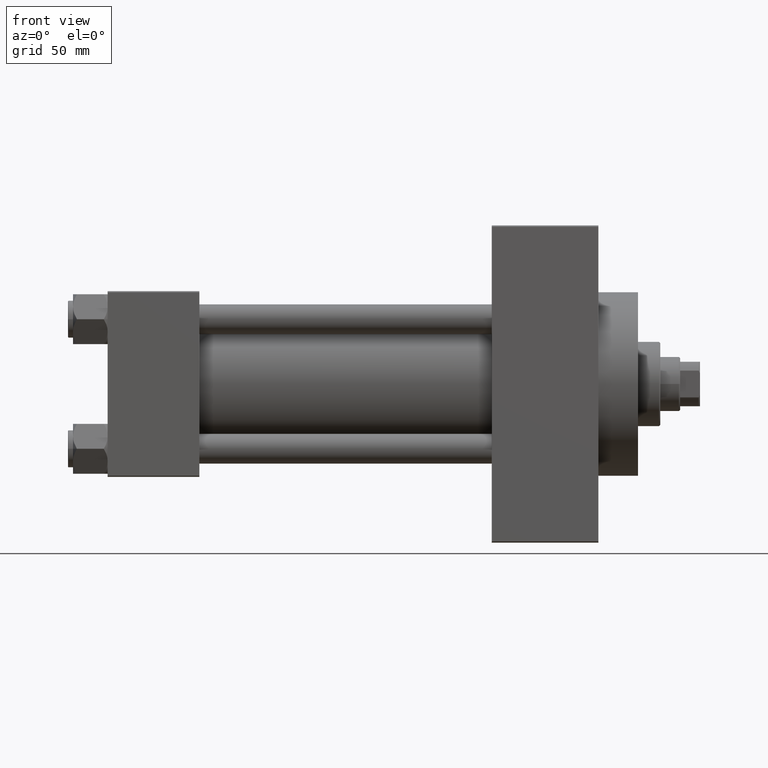
[diagram: clean part render]
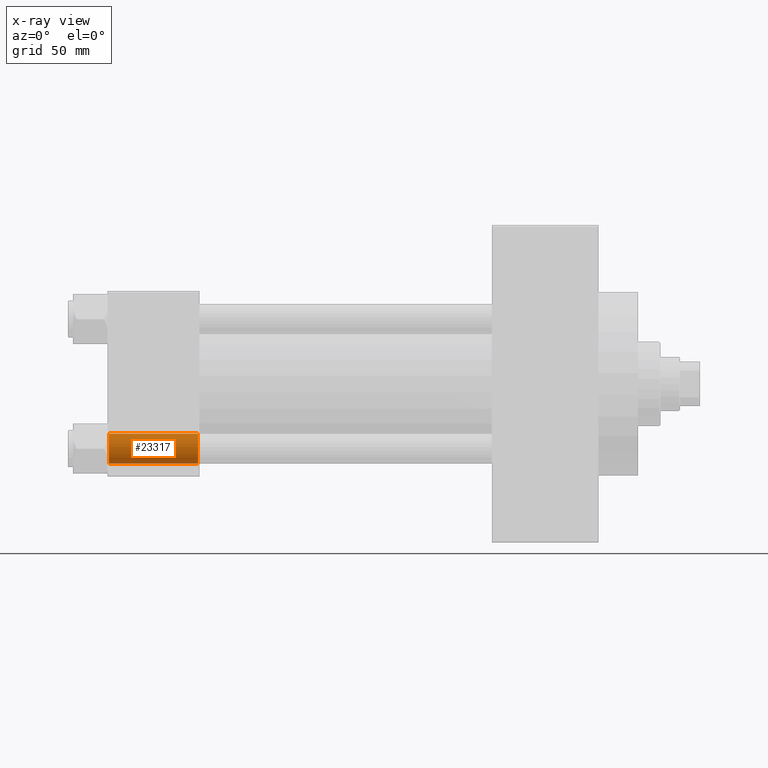
[diagram: x-ray — body ghosted, one internal face saturated and labeled with its STEP entity id]
A machine part, front view, then the same camera in x-ray: the body is ghosted and one INTERNAL B-rep face — a face not visible from any outside direction — is saturated and labeled: STEP entity #23317.
In plain terms, the highlighted cylindrical surface (edge-blend (fillet) strip) has radius 6 mm, axis along (-1, -0, -0).
Its self-contained STEP definition (entity closure, byte-faithful):
#749 = CARTESIAN_POINT ( 'NONE',  ( 0.5000000000000213163, 26.14999999999999858, -26.15000000000000213 ) ) ;
#1168 = AXIS2_PLACEMENT_3D ( 'NONE', #24256, #17051, #45586 ) ;
#4095 = DIRECTION ( 'NONE',  ( -1.000000000000000000, 0.000000000000000000, 0.000000000000000000 ) ) ;
#5039 = CYLINDRICAL_SURFACE ( 'NONE', #44826, 6.000000000000001776 ) ;
#5116 = ORIENTED_EDGE ( 'NONE', *, *, #30290, .F. ) ;
#5763 = LINE ( 'NONE', #42456, #37264 ) ;
#8909 = DIRECTION ( 'NONE',  ( -1.000000000000000000, -0.000000000000000000, -0.000000000000000000 ) ) ;
#9124 = LINE ( 'NONE', #23763, #42756 ) ;
#10528 = CARTESIAN_POINT ( 'NONE',  ( 0.5000000000000213163, 26.14999999999999858, -20.15000000000000213 ) ) ;
#11860 = CARTESIAN_POINT ( 'NONE',  ( 36.50000000000000711, 26.14999999999999858, -20.15000000000000213 ) ) ;
#15611 = DIRECTION ( 'NONE',  ( 0.000000000000000000, 0.000000000000000000, 1.000000000000000000 ) ) ;
#16171 = VERTEX_POINT ( 'NONE', #10528 ) ;
#17051 = DIRECTION ( 'NONE',  ( 1.000000000000000000, -0.000000000000000000, -0.000000000000000000 ) ) ;
#19687 = DIRECTION ( 'NONE',  ( -1.000000000000000000, -0.000000000000000000, -0.000000000000000000 ) ) ;
#20805 = EDGE_CURVE ( 'NONE', #46587, #42834, #5763, .T. ) ;
#23052 = DIRECTION ( 'NONE',  ( 0.000000000000000000, 0.000000000000000000, 1.000000000000000000 ) ) ;
#23317 = ADVANCED_FACE ( 'NONE', ( #34764 ), #5039, .F. ) ;
#23763 = CARTESIAN_POINT ( 'NONE',  ( 37.00000000000000711, 26.14999999999999858, -20.15000000000000213 ) ) ;
#24256 = CARTESIAN_POINT ( 'NONE',  ( 36.50000000000000711, 26.14999999999999858, -26.15000000000000213 ) ) ;
#30290 = EDGE_CURVE ( 'NONE', #46294, #16171, #9124, .T. ) ;
#32682 = EDGE_LOOP ( 'NONE', ( #36906, #44533, #36715, #5116 ) ) ;
#32947 = CARTESIAN_POINT ( 'NONE',  ( 36.50000000000000711, 26.14999999999999858, -32.15000000000000568 ) ) ;
#34764 = FACE_OUTER_BOUND ( 'NONE', #32682, .T. ) ;
#34770 = CARTESIAN_POINT ( 'NONE',  ( 0.5000000000000213163, 26.14999999999999858, -32.15000000000000568 ) ) ;
#36715 = ORIENTED_EDGE ( 'NONE', *, *, #46239, .T. ) ;
#36906 = ORIENTED_EDGE ( 'NONE', *, *, #40479, .T. ) ;
#37264 = VECTOR ( 'NONE', #8909, 1000.000000000000000 ) ;
#38011 = AXIS2_PLACEMENT_3D ( 'NONE', #749, #4095, #15611 ) ;
#38381 = DIRECTION ( 'NONE',  ( -1.000000000000000000, -0.000000000000000000, -0.000000000000000000 ) ) ;
#39458 = CIRCLE ( 'NONE', #1168, 6.000000000000001776 ) ;
#40479 = EDGE_CURVE ( 'NONE', #46294, #46587, #39458, .T. ) ;
#41097 = CIRCLE ( 'NONE', #38011, 6.000000000000001776 ) ;
#41269 = CARTESIAN_POINT ( 'NONE',  ( 37.00000000000000711, 26.14999999999999858, -26.15000000000000213 ) ) ;
#42456 = CARTESIAN_POINT ( 'NONE',  ( 37.00000000000000711, 26.14999999999999858, -32.15000000000000568 ) ) ;
#42756 = VECTOR ( 'NONE', #38381, 1000.000000000000000 ) ;
#42834 = VERTEX_POINT ( 'NONE', #34770 ) ;
#44533 = ORIENTED_EDGE ( 'NONE', *, *, #20805, .T. ) ;
#44826 = AXIS2_PLACEMENT_3D ( 'NONE', #41269, #19687, #23052 ) ;
#45586 = DIRECTION ( 'NONE',  ( 0.000000000000000000, 0.000000000000000000, 1.000000000000000000 ) ) ;
#46239 = EDGE_CURVE ( 'NONE', #42834, #16171, #41097, .T. ) ;
#46294 = VERTEX_POINT ( 'NONE', #11860 ) ;
#46587 = VERTEX_POINT ( 'NONE', #32947 ) ;